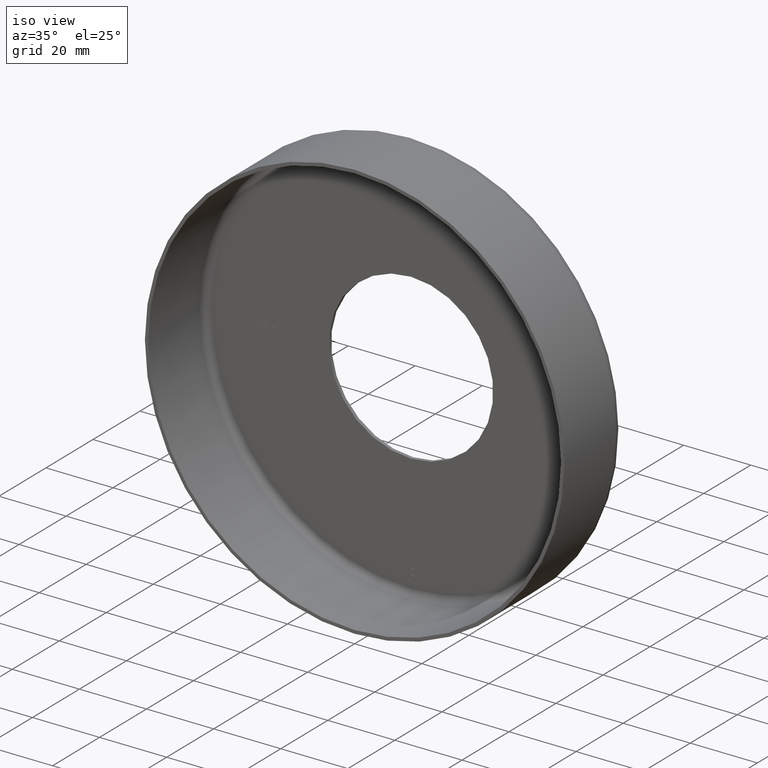
[diagram: clean part render]
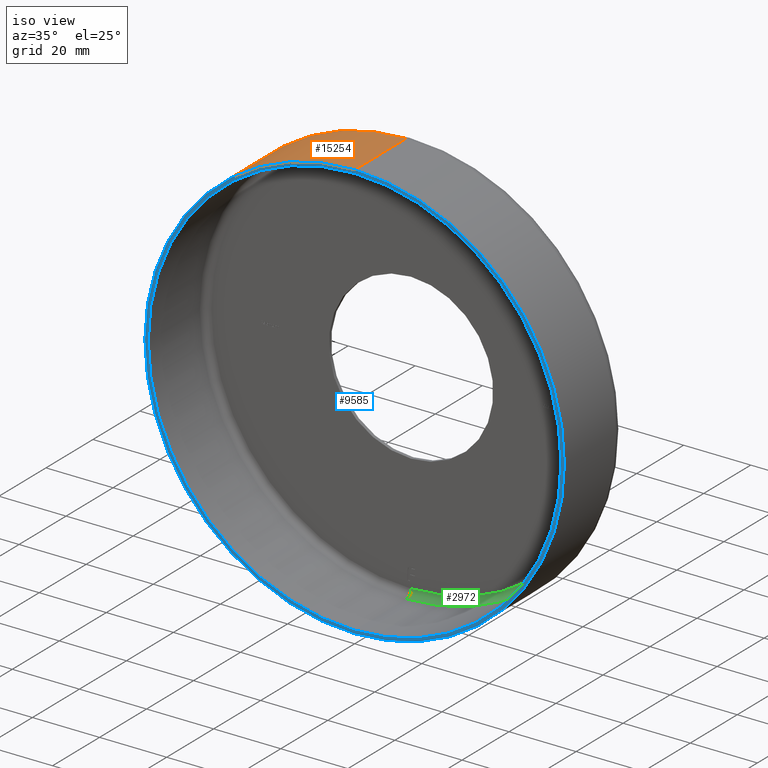
[diagram: same view with three faces highlighted in distinct colors, each labeled with its STEP entity id]
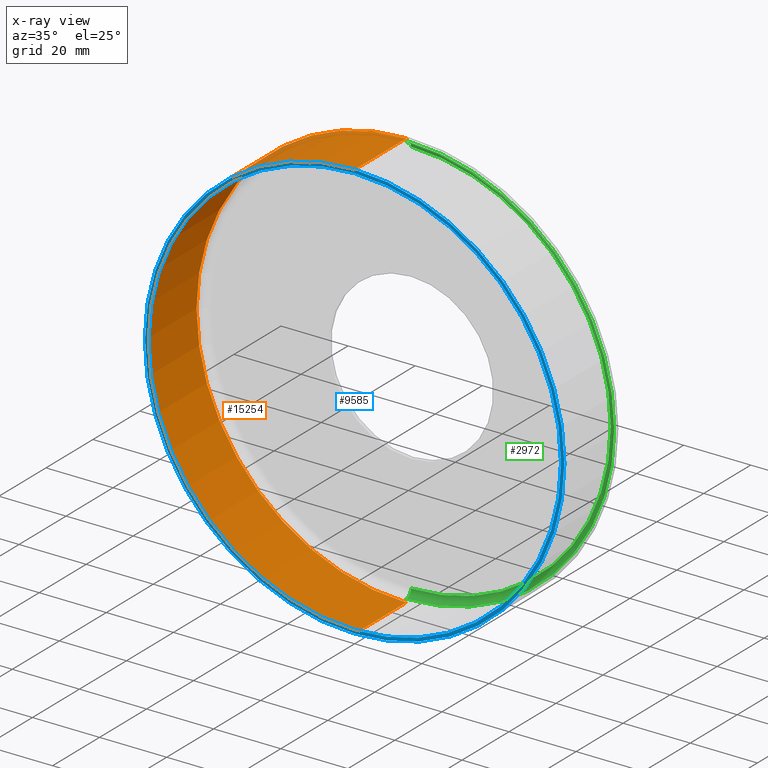
[diagram: x-ray of the same camera — body ghosted, the three highlighted faces saturated]
A machine part, iso view with three faces highlighted in distinct colors.
The next image is the same camera in x-ray (body ghosted, the three faces saturated) — at least one of them is partly hidden behind the body in this view.
Their STEP definitions:

[orange] entity #15254 — the highlighted cylindrical surface (partial cylindrical patch) has radius 62.5 mm, axis along (-0, -1, -0).
#323 = ORIENTED_EDGE ( 'NONE', *, *, #12696, .T. ) ;
#623 = CARTESIAN_POINT ( 'NONE',  ( 0.000000000000000000, 22.00000000000000355, 0.000000000000000000 ) ) ;
#1188 = VECTOR ( 'NONE', #11476, 1000.000000000000000 ) ;
#1362 = CARTESIAN_POINT ( 'NONE',  ( 0.000000000000000000, 22.00000000000000355, -62.50000000000000000 ) ) ;
#2252 = CARTESIAN_POINT ( 'NONE',  ( 7.654042494670957804E-15, 0.000000000000000000, 62.50000000000000000 ) ) ;
#2713 = VERTEX_POINT ( 'NONE', #8235 ) ;
#3186 = EDGE_CURVE ( 'NONE', #10482, #2713, #3501, .T. ) ;
#3188 = DIRECTION ( 'NONE',  ( -0.000000000000000000, -1.000000000000000000, -0.000000000000000000 ) ) ;
#3501 = CIRCLE ( 'NONE', #9552, 62.50000000000000000 ) ;
#3689 = DIRECTION ( 'NONE',  ( -0.000000000000000000, -1.000000000000000000, -0.000000000000000000 ) ) ;
#4006 = DIRECTION ( 'NONE',  ( -0.000000000000000000, -1.000000000000000000, -0.000000000000000000 ) ) ;
#4097 = EDGE_CURVE ( 'NONE', #10280, #2713, #15532, .T. ) ;
#4173 = DIRECTION ( 'NONE',  ( 0.000000000000000000, 0.000000000000000000, -1.000000000000000000 ) ) ;
#4533 = FACE_OUTER_BOUND ( 'NONE', #4687, .T. ) ;
#4687 = EDGE_LOOP ( 'NONE', ( #10858, #323, #6930, #4823 ) ) ;
#4823 = ORIENTED_EDGE ( 'NONE', *, *, #3186, .F. ) ;
#6138 = DIRECTION ( 'NONE',  ( 0.000000000000000000, 0.000000000000000000, -1.000000000000000000 ) ) ;
#6705 = CIRCLE ( 'NONE', #6715, 62.50000000000000000 ) ;
#6715 = AXIS2_PLACEMENT_3D ( 'NONE', #623, #3188, #11743 ) ;
#6930 = ORIENTED_EDGE ( 'NONE', *, *, #4097, .T. ) ;
#7130 = DIRECTION ( 'NONE',  ( -0.000000000000000000, -1.000000000000000000, -0.000000000000000000 ) ) ;
#7646 = EDGE_CURVE ( 'NONE', #9470, #10482, #13142, .T. ) ;
#8235 = CARTESIAN_POINT ( 'NONE',  ( 0.000000000000000000, 0.000000000000000000, -62.50000000000000000 ) ) ;
#9470 = VERTEX_POINT ( 'NONE', #15351 ) ;
#9552 = AXIS2_PLACEMENT_3D ( 'NONE', #13844, #4006, #4173 ) ;
#9864 = CARTESIAN_POINT ( 'NONE',  ( 0.000000000000000000, 0.000000000000000000, 0.000000000000000000 ) ) ;
#10280 = VERTEX_POINT ( 'NONE', #1362 ) ;
#10482 = VERTEX_POINT ( 'NONE', #11518 ) ;
#10858 = ORIENTED_EDGE ( 'NONE', *, *, #7646, .F. ) ;
#11360 = CARTESIAN_POINT ( 'NONE',  ( 0.000000000000000000, 0.000000000000000000, -62.50000000000000000 ) ) ;
#11476 = DIRECTION ( 'NONE',  ( -0.000000000000000000, -1.000000000000000000, -0.000000000000000000 ) ) ;
#11518 = CARTESIAN_POINT ( 'NONE',  ( 7.654042494670957804E-15, 0.000000000000000000, 62.50000000000000000 ) ) ;
#11743 = DIRECTION ( 'NONE',  ( 0.000000000000000000, 0.000000000000000000, -1.000000000000000000 ) ) ;
#12696 = EDGE_CURVE ( 'NONE', #9470, #10280, #6705, .T. ) ;
#13142 = LINE ( 'NONE', #2252, #14885 ) ;
#13218 = CYLINDRICAL_SURFACE ( 'NONE', #14376, 62.50000000000000000 ) ;
#13844 = CARTESIAN_POINT ( 'NONE',  ( 0.000000000000000000, 0.000000000000000000, 0.000000000000000000 ) ) ;
#14376 = AXIS2_PLACEMENT_3D ( 'NONE', #9864, #3689, #6138 ) ;
#14885 = VECTOR ( 'NONE', #7130, 1000.000000000000000 ) ;
#15254 = ADVANCED_FACE ( 'NONE', ( #4533 ), #13218, .T. ) ;
#15351 = CARTESIAN_POINT ( 'NONE',  ( 7.654042494670957804E-15, 22.00000000000000355, 62.50000000000000000 ) ) ;
#15532 = LINE ( 'NONE', #11360, #1188 ) ;

[blue] entity #9585 — the highlighted planar face has unit normal (0, -1, -0).
#1 = CIRCLE ( 'NONE', #7782, 62.50000000000000000 ) ;
#390 = EDGE_LOOP ( 'NONE', ( #3199, #14439 ) ) ;
#1301 = VERTEX_POINT ( 'NONE', #6618 ) ;
#2030 = DIRECTION ( 'NONE',  ( -0.000000000000000000, -1.000000000000000000, -0.000000000000000000 ) ) ;
#2397 = EDGE_CURVE ( 'NONE', #8210, #1301, #13770, .T. ) ;
#2713 = VERTEX_POINT ( 'NONE', #8235 ) ;
#3186 = EDGE_CURVE ( 'NONE', #10482, #2713, #3501, .T. ) ;
#3199 = ORIENTED_EDGE ( 'NONE', *, *, #2397, .F. ) ;
#3501 = CIRCLE ( 'NONE', #9552, 62.50000000000000000 ) ;
#3853 = AXIS2_PLACEMENT_3D ( 'NONE', #11205, #8673, #6399 ) ;
#4006 = DIRECTION ( 'NONE',  ( -0.000000000000000000, -1.000000000000000000, -0.000000000000000000 ) ) ;
#4173 = DIRECTION ( 'NONE',  ( 0.000000000000000000, 0.000000000000000000, -1.000000000000000000 ) ) ;
#4296 = DIRECTION ( 'NONE',  ( 0.000000000000000000, 0.000000000000000000, -1.000000000000000000 ) ) ;
#4510 = ORIENTED_EDGE ( 'NONE', *, *, #5276, .T. ) ;
#5270 = CARTESIAN_POINT ( 'NONE',  ( 0.000000000000000000, -1.224646799147353207E-16, 0.000000000000000000 ) ) ;
#5276 = EDGE_CURVE ( 'NONE', #2713, #10482, #1, .T. ) ;
#5650 = AXIS2_PLACEMENT_3D ( 'NONE', #15779, #13254, #15725 ) ;
#6399 = DIRECTION ( 'NONE',  ( 0.000000000000000000, 0.000000000000000000, -1.000000000000000000 ) ) ;
#6618 = CARTESIAN_POINT ( 'NONE',  ( 7.531577814756222656E-15, -1.224646799147353207E-16, 61.50000000000000000 ) ) ;
#7094 = CIRCLE ( 'NONE', #3853, 61.50000000000000000 ) ;
#7169 = PLANE ( 'NONE',  #5650 ) ;
#7782 = AXIS2_PLACEMENT_3D ( 'NONE', #11758, #2030, #4296 ) ;
#8210 = VERTEX_POINT ( 'NONE', #13911 ) ;
#8235 = CARTESIAN_POINT ( 'NONE',  ( 0.000000000000000000, 0.000000000000000000, -62.50000000000000000 ) ) ;
#8673 = DIRECTION ( 'NONE',  ( -0.000000000000000000, -1.000000000000000000, -0.000000000000000000 ) ) ;
#9269 = FACE_OUTER_BOUND ( 'NONE', #15811, .T. ) ;
#9552 = AXIS2_PLACEMENT_3D ( 'NONE', #13844, #4006, #4173 ) ;
#9585 = ADVANCED_FACE ( 'NONE', ( #9269, #10809 ), #7169, .T. ) ;
#10482 = VERTEX_POINT ( 'NONE', #11518 ) ;
#10809 = FACE_BOUND ( 'NONE', #390, .T. ) ;
#11176 = AXIS2_PLACEMENT_3D ( 'NONE', #5270, #13897, #15218 ) ;
#11205 = CARTESIAN_POINT ( 'NONE',  ( 0.000000000000000000, -1.224646799147353207E-16, 0.000000000000000000 ) ) ;
#11518 = CARTESIAN_POINT ( 'NONE',  ( 7.654042494670957804E-15, 0.000000000000000000, 62.50000000000000000 ) ) ;
#11758 = CARTESIAN_POINT ( 'NONE',  ( 0.000000000000000000, 0.000000000000000000, 0.000000000000000000 ) ) ;
#11916 = EDGE_CURVE ( 'NONE', #1301, #8210, #7094, .T. ) ;
#12848 = ORIENTED_EDGE ( 'NONE', *, *, #3186, .T. ) ;
#13254 = DIRECTION ( 'NONE',  ( 0.000000000000000000, -1.000000000000000000, -0.000000000000000000 ) ) ;
#13770 = CIRCLE ( 'NONE', #11176, 61.50000000000000000 ) ;
#13844 = CARTESIAN_POINT ( 'NONE',  ( 0.000000000000000000, 0.000000000000000000, 0.000000000000000000 ) ) ;
#13897 = DIRECTION ( 'NONE',  ( -0.000000000000000000, -1.000000000000000000, -0.000000000000000000 ) ) ;
#13911 = CARTESIAN_POINT ( 'NONE',  ( 0.000000000000000000, -1.224646799147353207E-16, -61.50000000000000000 ) ) ;
#14439 = ORIENTED_EDGE ( 'NONE', *, *, #11916, .F. ) ;
#15218 = DIRECTION ( 'NONE',  ( 0.000000000000000000, 0.000000000000000000, -1.000000000000000000 ) ) ;
#15725 = DIRECTION ( 'NONE',  ( 0.000000000000000000, 0.000000000000000000, -1.000000000000000000 ) ) ;
#15779 = CARTESIAN_POINT ( 'NONE',  ( 61.50000000000000000, -6.123233995736766036E-17, 0.000000000000000000 ) ) ;
#15811 = EDGE_LOOP ( 'NONE', ( #4510, #12848 ) ) ;

[green] entity #2972 — the highlighted toroidal blend (fillet) surface has major radius 59.5 mm and minor (blend) radius 2 mm.
#202 = EDGE_CURVE ( 'NONE', #1816, #14434, #5124, .T. ) ;
#275 = CIRCLE ( 'NONE', #6378, 2.000000000000001776 ) ;
#946 = DIRECTION ( 'NONE',  ( -0.000000000000000000, -1.000000000000000000, -0.000000000000000000 ) ) ;
#1336 = AXIS2_PLACEMENT_3D ( 'NONE', #3174, #2000, #13215 ) ;
#1816 = VERTEX_POINT ( 'NONE', #8120 ) ;
#2000 = DIRECTION ( 'NONE',  ( -0.000000000000000000, -1.000000000000000000, -0.000000000000000000 ) ) ;
#2189 = DIRECTION ( 'NONE',  ( 0.000000000000000000, 0.000000000000000000, -1.000000000000000000 ) ) ;
#2539 = CARTESIAN_POINT ( 'NONE',  ( 7.531577814756222656E-15, 22.00000000000000355, 61.50000000000000000 ) ) ;
#2972 = ADVANCED_FACE ( 'NONE', ( #15740 ), #3712, .F. ) ;
#3174 = CARTESIAN_POINT ( 'NONE',  ( 0.000000000000000000, 22.00000000000000355, 0.000000000000000000 ) ) ;
#3240 = CARTESIAN_POINT ( 'NONE',  ( 0.000000000000000000, 24.00000000000000000, -59.50000000000000000 ) ) ;
#3664 = ORIENTED_EDGE ( 'NONE', *, *, #13404, .T. ) ;
#3712 = TOROIDAL_SURFACE ( 'NONE', #15578, 59.50000000000000000, 2.000000000000000000 ) ;
#4539 = DIRECTION ( 'NONE',  ( 0.000000000000000000, 0.000000000000000000, -1.000000000000000000 ) ) ;
#4924 = ORIENTED_EDGE ( 'NONE', *, *, #202, .T. ) ;
#5062 = CARTESIAN_POINT ( 'NONE',  ( 0.000000000000000000, 22.00000000000000355, -59.50000000000000000 ) ) ;
#5124 = CIRCLE ( 'NONE', #1336, 61.50000000000000000 ) ;
#5229 = EDGE_LOOP ( 'NONE', ( #12332, #13073, #3664, #4924 ) ) ;
#6378 = AXIS2_PLACEMENT_3D ( 'NONE', #5062, #13687, #7554 ) ;
#7087 = DIRECTION ( 'NONE',  ( -0.000000000000000000, -1.000000000000000000, -0.000000000000000000 ) ) ;
#7103 = EDGE_CURVE ( 'NONE', #14701, #14434, #7166, .T. ) ;
#7166 = CIRCLE ( 'NONE', #14840, 2.000000000000001776 ) ;
#7328 = DIRECTION ( 'NONE',  ( 1.000000000000000000, 0.000000000000000000, -1.224646799147353207E-16 ) ) ;
#7554 = DIRECTION ( 'NONE',  ( 0.000000000000000000, 0.000000000000000000, 1.000000000000000000 ) ) ;
#8120 = CARTESIAN_POINT ( 'NONE',  ( 0.000000000000000000, 22.00000000000000355, -61.50000000000000000 ) ) ;
#8559 = DIRECTION ( 'NONE',  ( -1.224646799147349509E-16, 0.000000000000000000, -1.000000000000000000 ) ) ;
#9058 = EDGE_CURVE ( 'NONE', #11797, #14701, #10236, .T. ) ;
#10236 = CIRCLE ( 'NONE', #14748, 59.50000000000000000 ) ;
#11797 = VERTEX_POINT ( 'NONE', #3240 ) ;
#12332 = ORIENTED_EDGE ( 'NONE', *, *, #7103, .F. ) ;
#13073 = ORIENTED_EDGE ( 'NONE', *, *, #9058, .F. ) ;
#13215 = DIRECTION ( 'NONE',  ( 0.000000000000000000, 0.000000000000000000, -1.000000000000000000 ) ) ;
#13257 = CARTESIAN_POINT ( 'NONE',  ( 0.000000000000000000, 22.00000000000000355, 0.000000000000000000 ) ) ;
#13404 = EDGE_CURVE ( 'NONE', #11797, #1816, #275, .T. ) ;
#13687 = DIRECTION ( 'NONE',  ( -1.000000000000000000, 0.000000000000000000, 0.000000000000000000 ) ) ;
#14396 = CARTESIAN_POINT ( 'NONE',  ( 7.409113134841485930E-15, 24.00000000000000000, 59.50000000000000000 ) ) ;
#14434 = VERTEX_POINT ( 'NONE', #2539 ) ;
#14483 = CARTESIAN_POINT ( 'NONE',  ( 0.000000000000000000, 24.00000000000000000, 0.000000000000000000 ) ) ;
#14701 = VERTEX_POINT ( 'NONE', #14396 ) ;
#14731 = CARTESIAN_POINT ( 'NONE',  ( 7.286648454926750781E-15, 22.00000000000000355, 59.50000000000000000 ) ) ;
#14748 = AXIS2_PLACEMENT_3D ( 'NONE', #14483, #7087, #4539 ) ;
#14840 = AXIS2_PLACEMENT_3D ( 'NONE', #14731, #7328, #8559 ) ;
#15578 = AXIS2_PLACEMENT_3D ( 'NONE', #13257, #946, #2189 ) ;
#15740 = FACE_OUTER_BOUND ( 'NONE', #5229, .T. ) ;